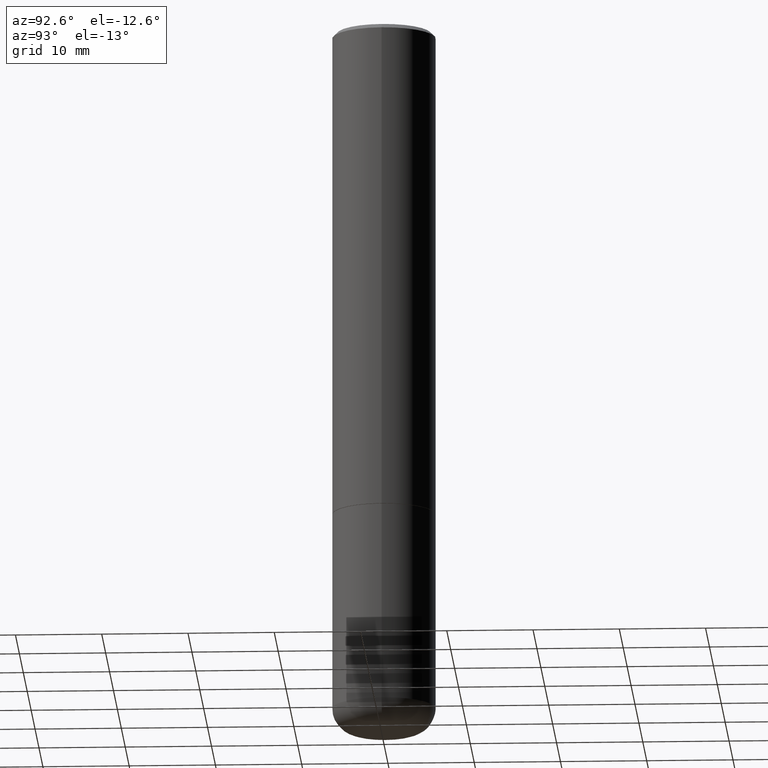
[diagram: clean part render]
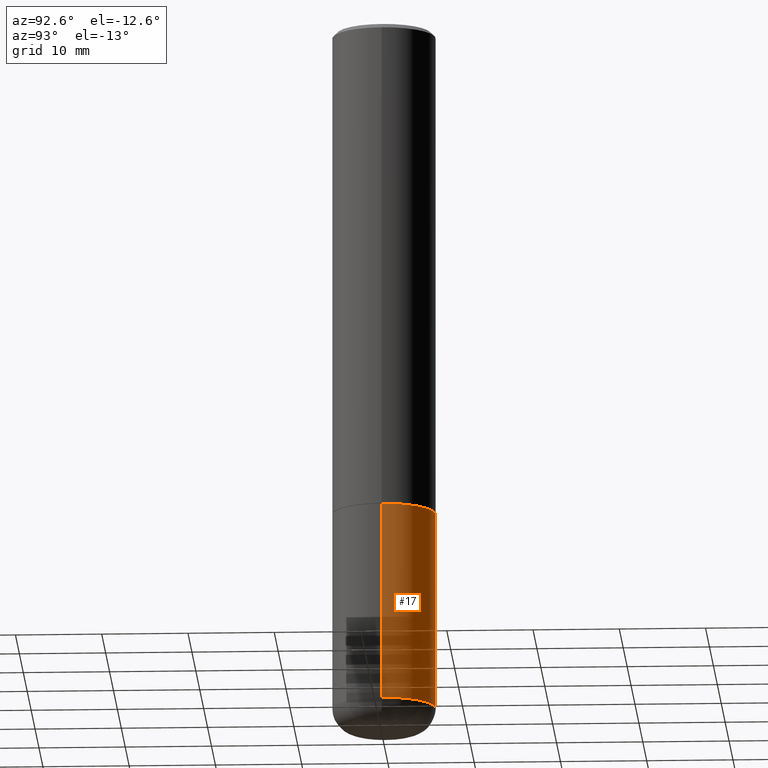
[diagram: same view with one face highlighted and labeled with its STEP entity id]
A machine part, auxiliary view. The second image highlights one B-rep face of the part: STEP entity #17.
In plain terms, the highlighted cylindrical surface (partial cylindrical patch) has radius 5.9995 mm, axis along (-0, 0, 1).
Its self-contained STEP definition (entity closure, byte-faithful):
#5 = CARTESIAN_POINT ( 'NONE',  ( 0.2362000000000000210, -1.264614540928986883E-14, -3.149600000000000399 ) ) ;
#16 = CARTESIAN_POINT ( 'NONE',  ( 0.000000000000000000, 0.000000000000000000, 0.000000000000000000 ) ) ;
#17 = ADVANCED_FACE ( 'NONE', ( #307 ), #244, .T. ) ;
#21 = VECTOR ( 'NONE', #407, 39.37007874015748143 ) ;
#39 = ORIENTED_EDGE ( 'NONE', *, *, #101, .T. ) ;
#61 = DIRECTION ( 'NONE',  ( -2.445468806185136877E-29, 3.491481338843145188E-15, 1.000000000000000000 ) ) ;
#69 = EDGE_CURVE ( 'NONE', #323, #171, #360, .T. ) ;
#75 = CARTESIAN_POINT ( 'NONE',  ( -0.2362000000000000210, -9.318467682955017493E-15, -3.149600000000000399 ) ) ;
#78 = CARTESIAN_POINT ( 'NONE',  ( 5.487876547960065873E-29, -7.835233272497903917E-15, -2.244100000000000428 ) ) ;
#100 = EDGE_LOOP ( 'NONE', ( #39, #134, #206, #317 ) ) ;
#101 = EDGE_CURVE ( 'NONE', #388, #131, #234, .T. ) ;
#107 = CARTESIAN_POINT ( 'NONE',  ( 7.702248551960706711E-29, -1.099676962482037231E-14, -3.149600000000000399 ) ) ;
#131 = VERTEX_POINT ( 'NONE', #75 ) ;
#134 = ORIENTED_EDGE ( 'NONE', *, *, #219, .T. ) ;
#146 = DIRECTION ( 'NONE',  ( 1.000000000000000000, -6.982962677686269077E-15, 0.000000000000000000 ) ) ;
#171 = VERTEX_POINT ( 'NONE', #402 ) ;
#177 = AXIS2_PLACEMENT_3D ( 'NONE', #78, #238, #146 ) ;
#203 = AXIS2_PLACEMENT_3D ( 'NONE', #16, #405, #280 ) ;
#206 = ORIENTED_EDGE ( 'NONE', *, *, #69, .F. ) ;
#219 = EDGE_CURVE ( 'NONE', #131, #171, #384, .T. ) ;
#234 = CIRCLE ( 'NONE', #342, 0.2362000000000000210 ) ;
#238 = DIRECTION ( 'NONE',  ( -2.445468806185136597E-29, 3.491481338843145583E-15, 1.000000000000000000 ) ) ;
#240 = DIRECTION ( 'NONE',  ( 1.000000000000000000, -6.982962677686264344E-15, 0.000000000000000000 ) ) ;
#244 = CYLINDRICAL_SURFACE ( 'NONE', #203, 0.2361999999999999933 ) ;
#256 = VECTOR ( 'NONE', #61, 39.37007874015748143 ) ;
#280 = DIRECTION ( 'NONE',  ( 1.000000000000000000, -6.982962677686266711E-15, 4.876176775795936353E-29 ) ) ;
#284 = CARTESIAN_POINT ( 'NONE',  ( -0.2361999999999999933, 1.678301941865356591E-15, -1.161852468318208757E-29 ) ) ;
#285 = EDGE_CURVE ( 'NONE', #388, #323, #321, .T. ) ;
#305 = DIRECTION ( 'NONE',  ( -2.445468806185136597E-29, 3.491481338843145583E-15, 1.000000000000000000 ) ) ;
#307 = FACE_OUTER_BOUND ( 'NONE', #100, .T. ) ;
#317 = ORIENTED_EDGE ( 'NONE', *, *, #285, .F. ) ;
#321 = LINE ( 'NONE', #349, #256 ) ;
#323 = VERTEX_POINT ( 'NONE', #377 ) ;
#342 = AXIS2_PLACEMENT_3D ( 'NONE', #107, #305, #240 ) ;
#349 = CARTESIAN_POINT ( 'NONE',  ( 0.2361999999999999933, -1.649375784469496131E-15, 1.151752954443000088E-29 ) ) ;
#360 = CIRCLE ( 'NONE', #177, 0.2361999999999999933 ) ;
#377 = CARTESIAN_POINT ( 'NONE',  ( 0.2361999999999999933, -9.484609056967400443E-15, -2.244100000000000428 ) ) ;
#384 = LINE ( 'NONE', #284, #21 ) ;
#388 = VERTEX_POINT ( 'NONE', #5 ) ;
#402 = CARTESIAN_POINT ( 'NONE',  ( -0.2361999999999999933, -7.737699506793781719E-15, -2.244100000000000428 ) ) ;
#405 = DIRECTION ( 'NONE',  ( -2.445468806185136597E-29, 3.491481338843145583E-15, 1.000000000000000000 ) ) ;
#407 = DIRECTION ( 'NONE',  ( -2.445468806185136877E-29, 3.491481338843145188E-15, 1.000000000000000000 ) ) ;